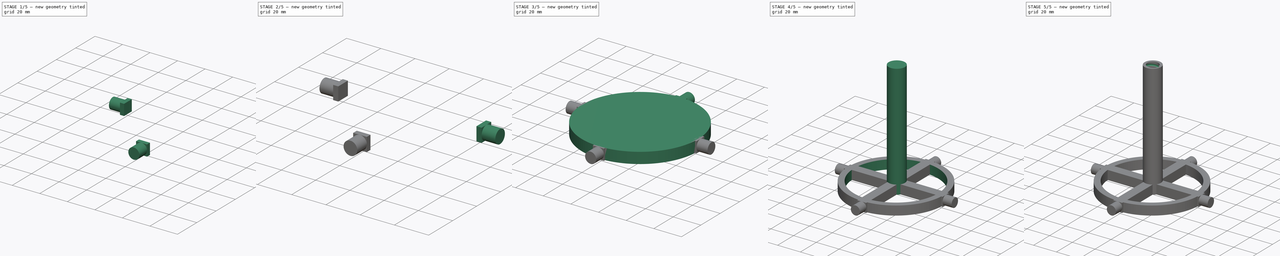
[diagram: build sequence overview — one tinted view per stage of 5, left to right]
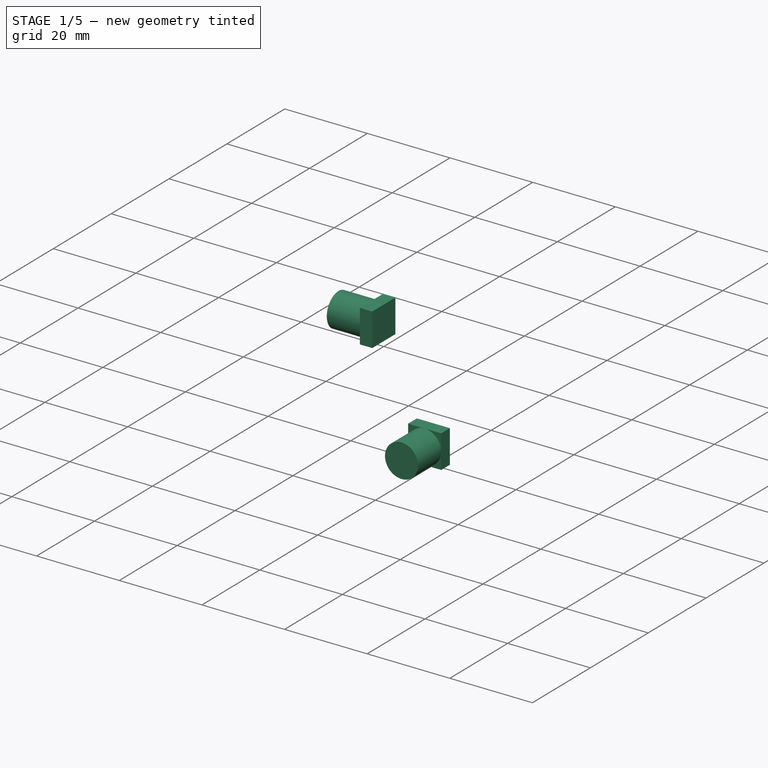
[diagram: stage 1 of 5 — iso view after this stage's code; geometry added in this stage tinted green]
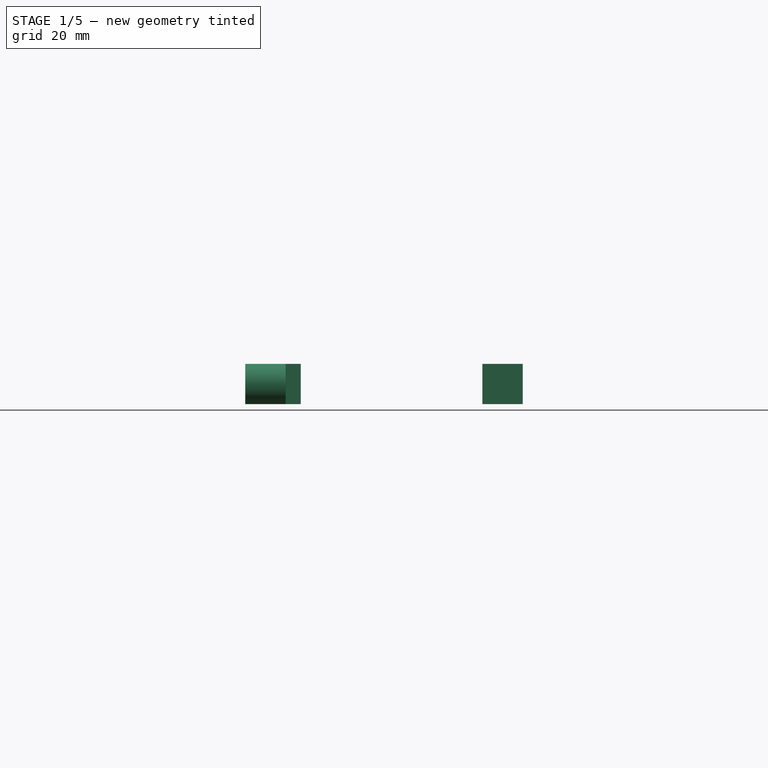
[diagram: stage 1 of 5 — front view after this stage's code; geometry added in this stage tinted green]
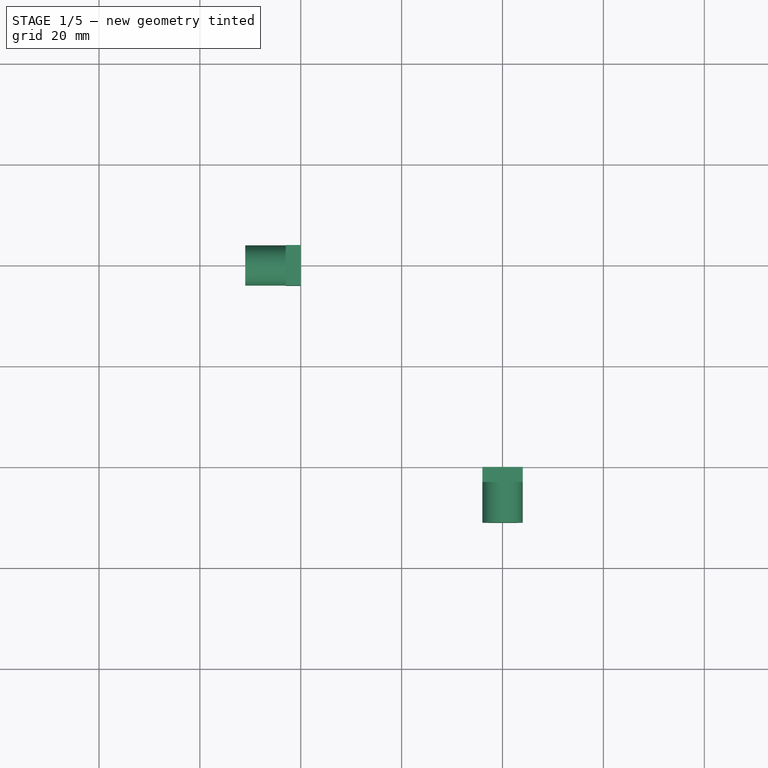
[diagram: stage 1 of 5 — top view after this stage's code; geometry added in this stage tinted green]
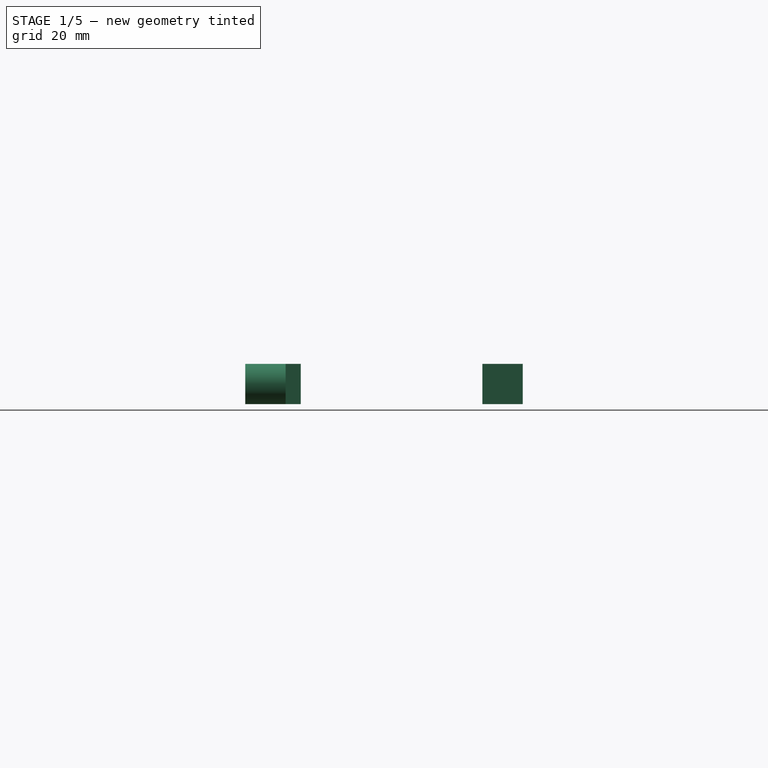
[diagram: stage 1 of 5 — right view after this stage's code; geometry added in this stage tinted green]
FCSTD DOCUMENT  (FreeCAD 0.16R6712 (Git))
Label: soporte 2
License: All rights reserved
LicenseURL: http://en.wikipedia.org/wiki/All_rights_reserved
objects: Part::Cylinder×7, Part::Box×7, Part::MultiFuse×6, Part::Cut×3, Part::Thickness×1, Part::Helix×1, Sketcher::SketchObject×1, Part::Sweep×1, App::DocumentObjectGroup×1
note: 27 computed .brp shape members not serialized (recipe doc carries the construction recipe); baked Part::Feature solids carry a one-line shape summary decoded from their .brp

FEATURE [Part::Cylinder] Cylinder005
  Angle = 360
  Height = 10
  Placement = pos=(0,-41,4) rot=(1,0,0;1.5708rad)
  Radius = 4
FEATURE [Part::Box] Box004  label="Cube004"
  Height = 8
  Length = 8
  Placement = pos=(-4,-43,0) rot=(0,0,1;0rad)
  Width = 3
FEATURE [Part::Cylinder] Cylinder006
  Angle = 360
  Height = 10
  Placement = pos=(0,-41,4) rot=(1,0,0;1.5708rad)
  Radius = 4
FEATURE [Part::Box] Box005  label="Cube005"
  Height = 8
  Length = 8
  Placement = pos=(-4,-43,0) rot=(0,0,1;0rad)
  Width = 3
FEATURE [Part::MultiFuse] Fusion005  label="sujetaBearing4"
  Placement = pos=(0,0,0) rot=(0,0,-1;1.5708rad)
  Shapes = -> [Box005,Cylinder006]
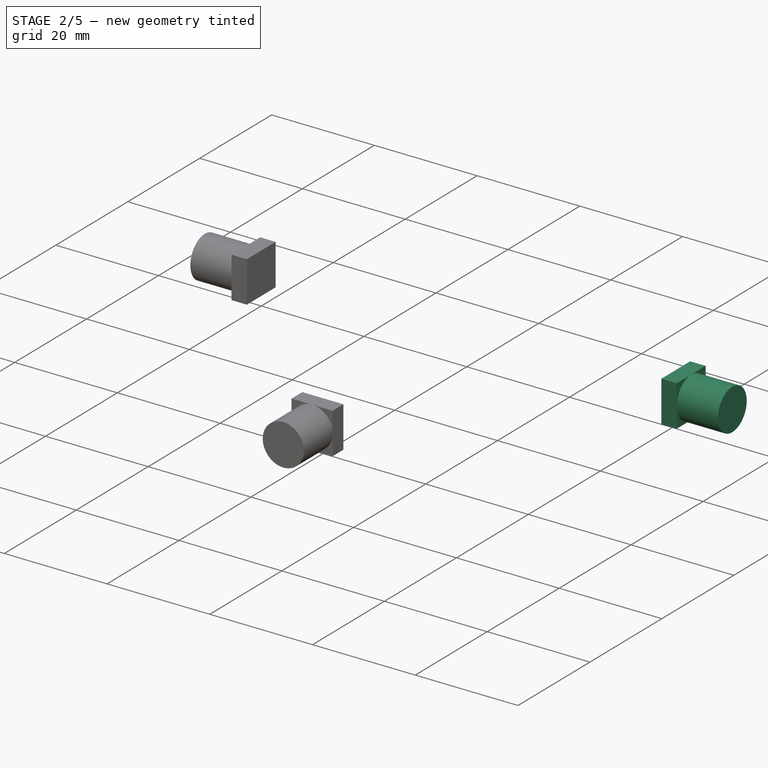
[diagram: stage 2 of 5 — iso view after this stage's code; geometry added in this stage tinted green]
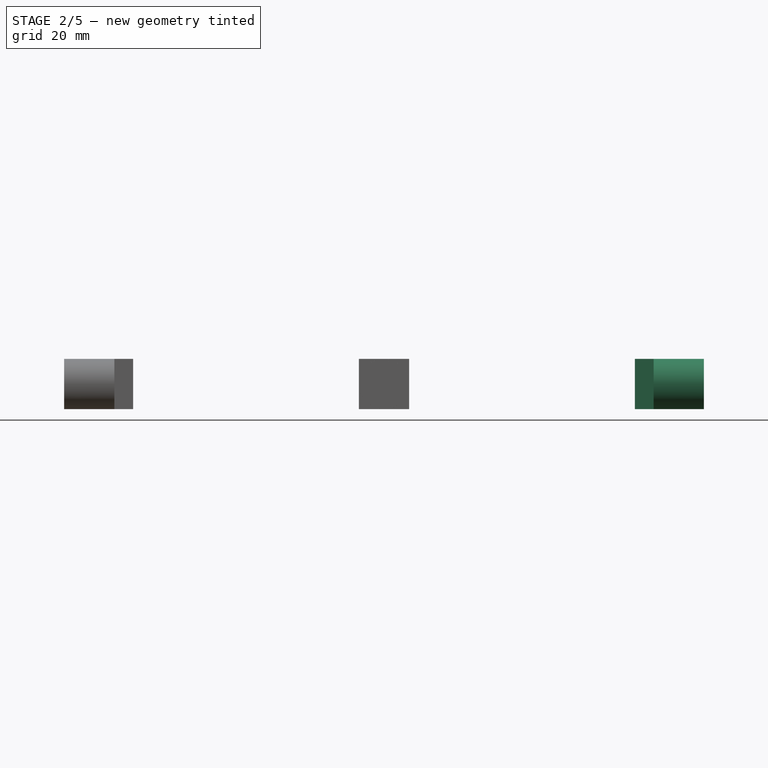
[diagram: stage 2 of 5 — front view after this stage's code; geometry added in this stage tinted green]
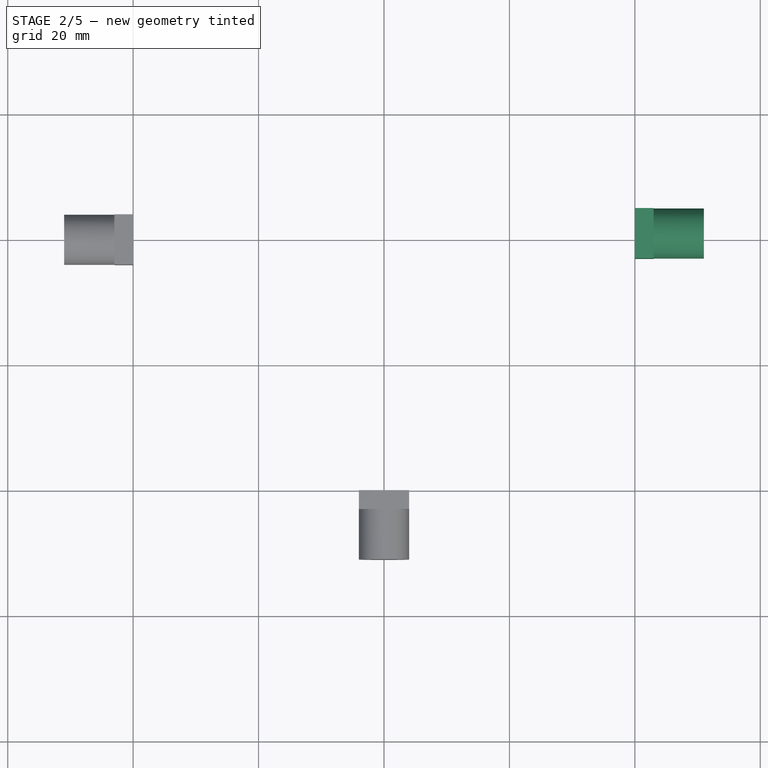
[diagram: stage 2 of 5 — top view after this stage's code; geometry added in this stage tinted green]
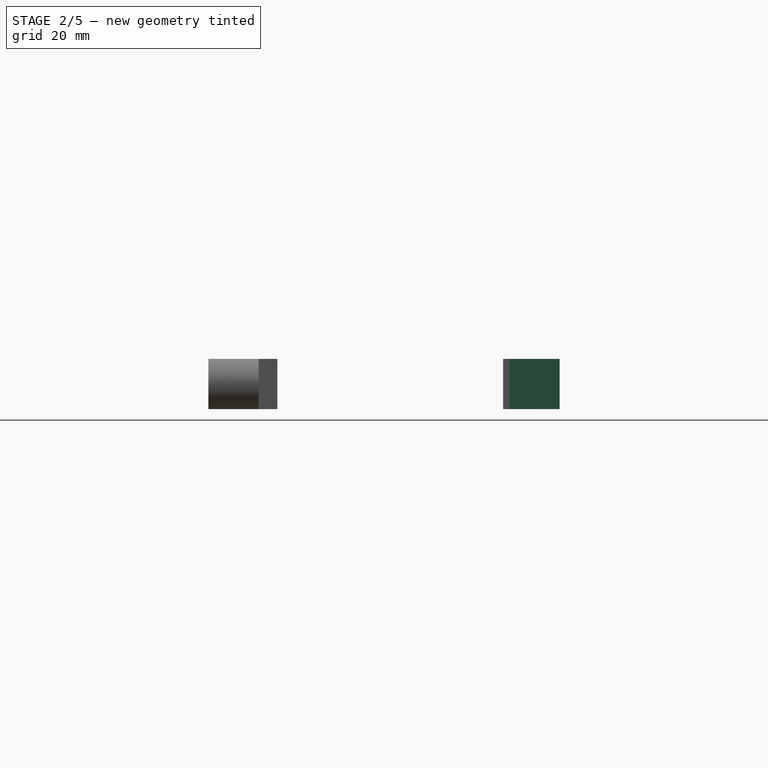
[diagram: stage 2 of 5 — right view after this stage's code; geometry added in this stage tinted green]
FEATURE [Part::Box] Box002  label="Cube002"
  Height = 8
  Length = 8
  Placement = pos=(-4,-43,0) rot=(0,0,1;0rad)
  Width = 3
FEATURE [Part::Cylinder] Cylinder004
  Angle = 360
  Height = 10
  Placement = pos=(0,-41,4) rot=(1,0,0;1.5708rad)
  Radius = 4
FEATURE [Part::Box] Box003  label="Cube003"
  Height = 8
  Length = 8
  Placement = pos=(-4,-43,0) rot=(0,0,1;0rad)
  Width = 3
FEATURE [Part::MultiFuse] Fusion003  label="sujetaBearing2"
  Placement = pos=(0,1,0) rot=(0,0,1;1.5708rad)
  Shapes = -> [Box003,Cylinder004]
FEATURE [Part::MultiFuse] Fusion004  label="sujetaBearing3"
  Shapes = -> [Box004,Cylinder005]
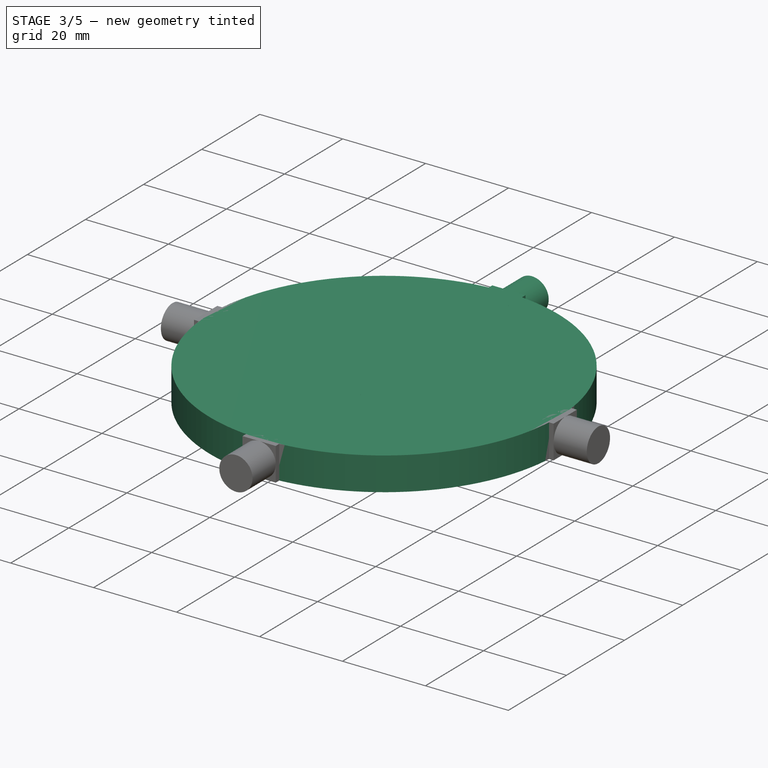
[diagram: stage 3 of 5 — iso view after this stage's code; geometry added in this stage tinted green]
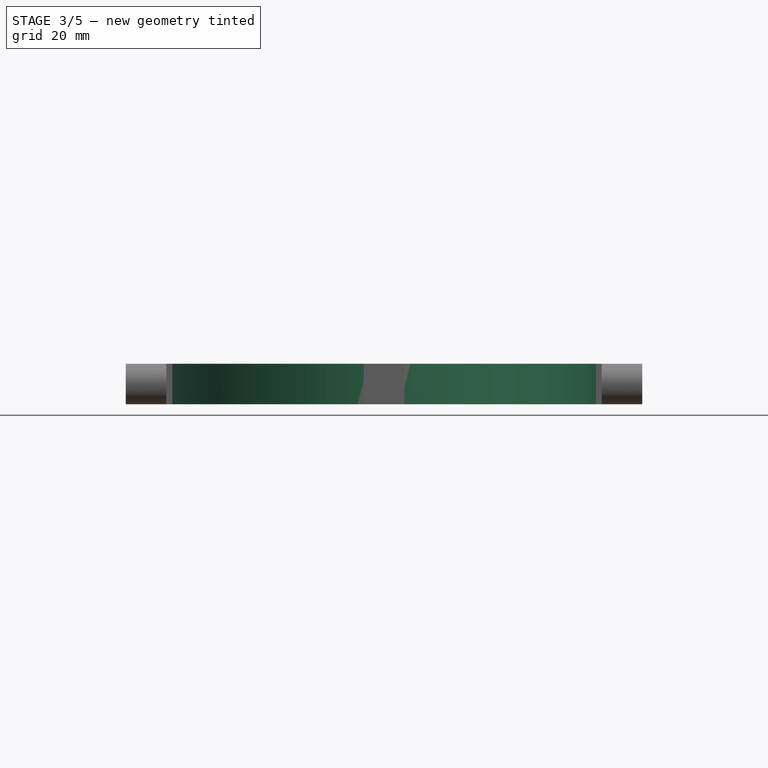
[diagram: stage 3 of 5 — front view after this stage's code; geometry added in this stage tinted green]
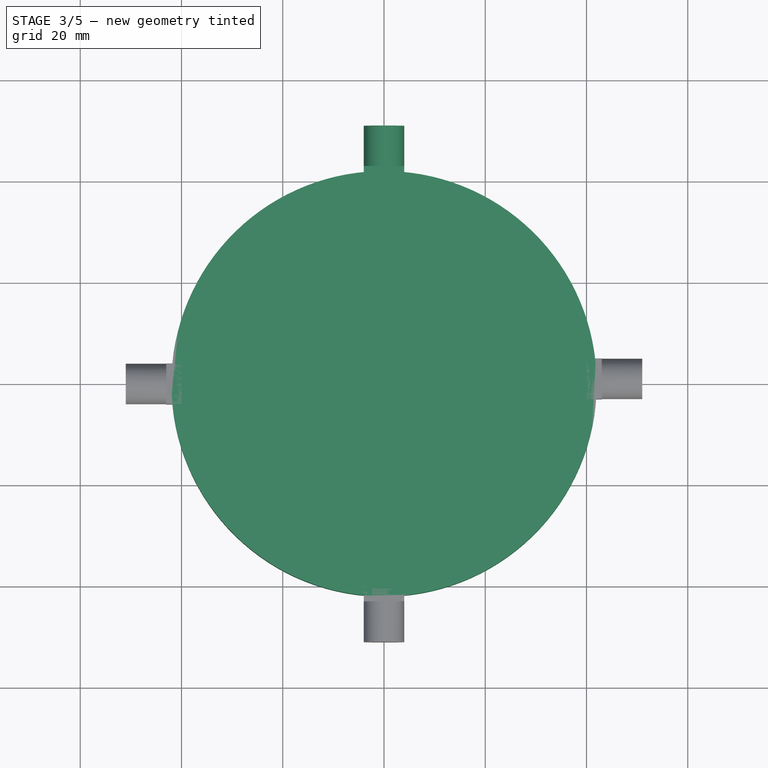
[diagram: stage 3 of 5 — top view after this stage's code; geometry added in this stage tinted green]
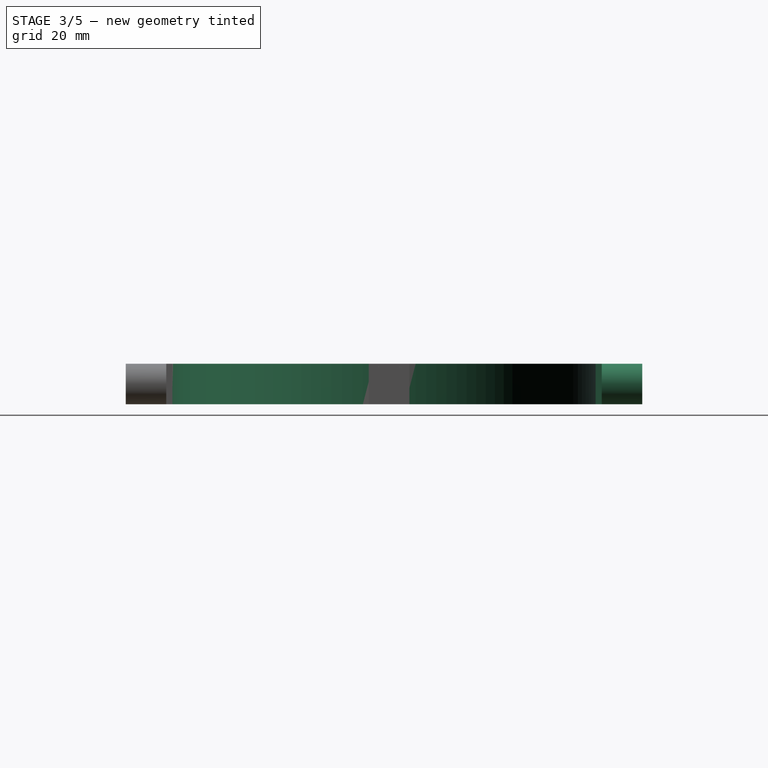
[diagram: stage 3 of 5 — right view after this stage's code; geometry added in this stage tinted green]
FEATURE [Part::Cylinder] Cylinder
  Angle = 360
  Height = 8
  Radius = 42
FEATURE [Part::Box] Box  label="Cube"
  Height = 8
  Length = 80
  Placement = pos=(4,-40,0) rot=(0,0,1;1.5708rad)
  Width = 8
FEATURE [Part::Box] Box001  label="Cube001"
  Height = 8
  Length = 80
  Placement = pos=(-40,-3,0) rot=(0,0,1;0rad)
  Width = 8
FEATURE [Part::Cylinder] Cylinder003
  Angle = 360
  Height = 10
  Placement = pos=(0,-41,4) rot=(1,0,0;1.5708rad)
  Radius = 4
FEATURE [Part::MultiFuse] Fusion002  label="sujetaBearing"
  Placement = pos=(0,0,0) rot=(0,0,1;3.14159rad)
  Shapes = -> [Box002,Cylinder003]
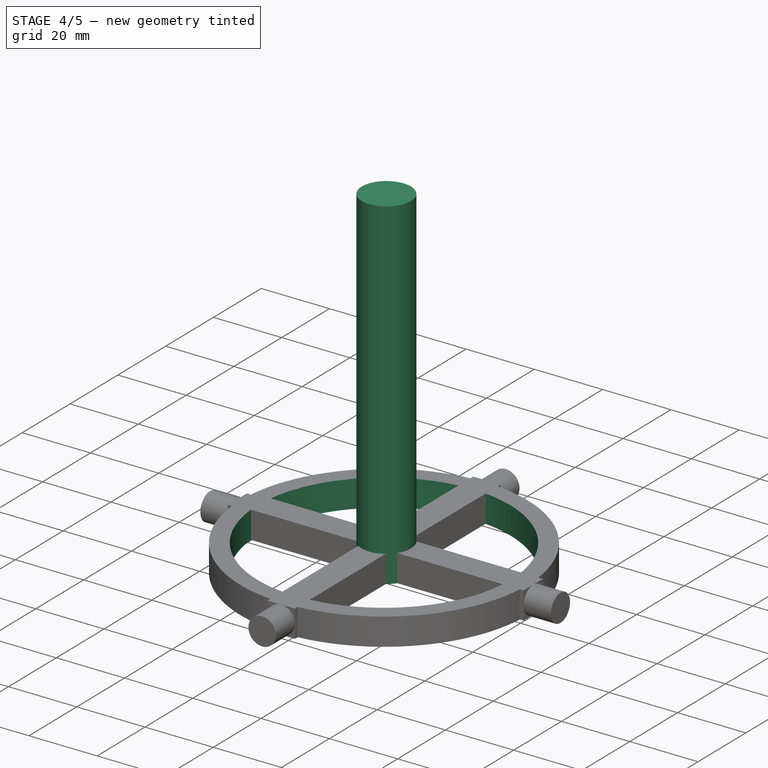
[diagram: stage 4 of 5 — iso view after this stage's code; geometry added in this stage tinted green]
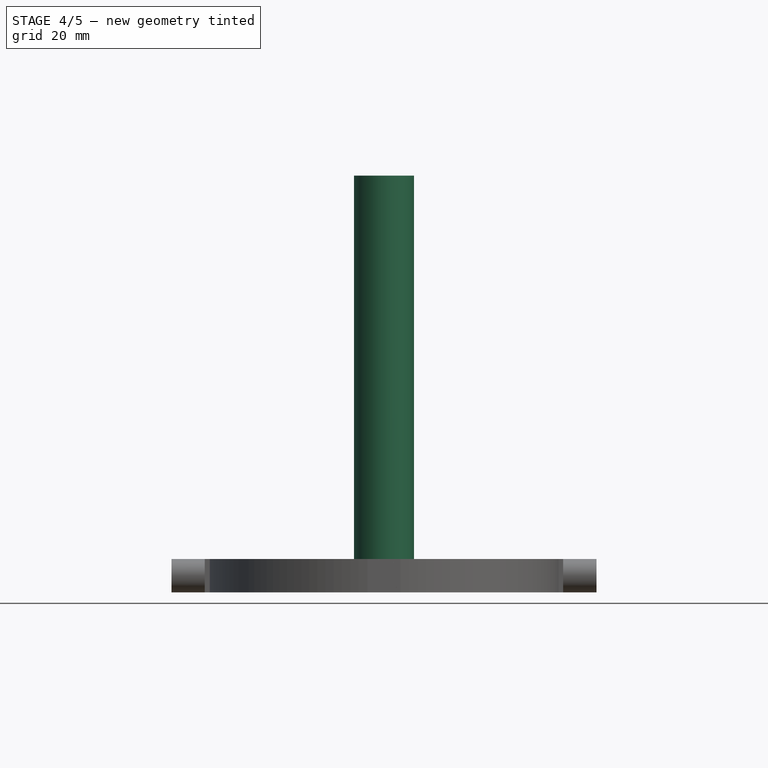
[diagram: stage 4 of 5 — front view after this stage's code; geometry added in this stage tinted green]
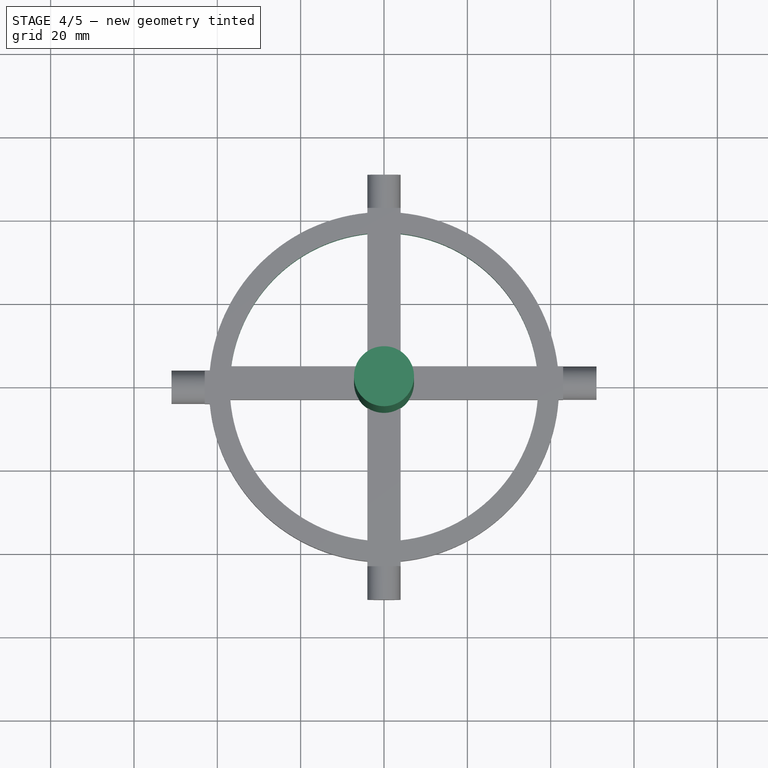
[diagram: stage 4 of 5 — top view after this stage's code; geometry added in this stage tinted green]
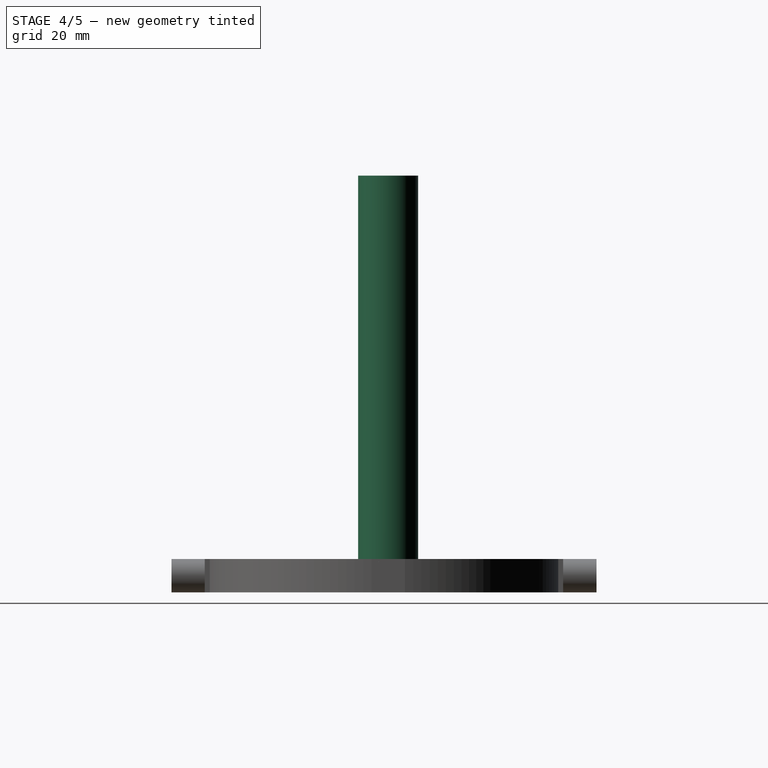
[diagram: stage 4 of 5 — right view after this stage's code; geometry added in this stage tinted green]
FEATURE [Part::Thickness] Thickness
  Faces = -> Cylinder [Face3,Face2]
  Intersection = false
  Join = 0
  Mode = 0
  SelfIntersection = false
  Value = -5
FEATURE [Part::MultiFuse] Fusion  label="circuloYcruz"
  Shapes = -> [Box001,Box,Thickness]
FEATURE [Part::Cylinder] Cylinder007  label="PaloCentral"
  Angle = 360
  Height = 100
  Placement = pos=(0,1,0) rot=(0,0,1;0rad)
  Radius = 7.2
FEATURE [Part::Helix] Helix
  Angle = 0
  Height = 20
  LocalCoord = 0
  Pitch = 4
  Radius = 5
  Style = 1
FEATURE [Part::Cylinder] Cylinder008  label="cilindrorosca"
  Angle = 360
  Height = 20
  Placement = pos=(0,1,80) rot=(0,0,1;0rad)
  Radius = 5
FEATURE [Part::MultiFuse] Fusion006
  Shapes = -> [Fusion002,Fusion003,Fusion004,Fusion005,Fusion]
FEATURE [App::DocumentObjectGroup] Group  label="SujetaRodamiento"
  Group = -> [Fusion006]
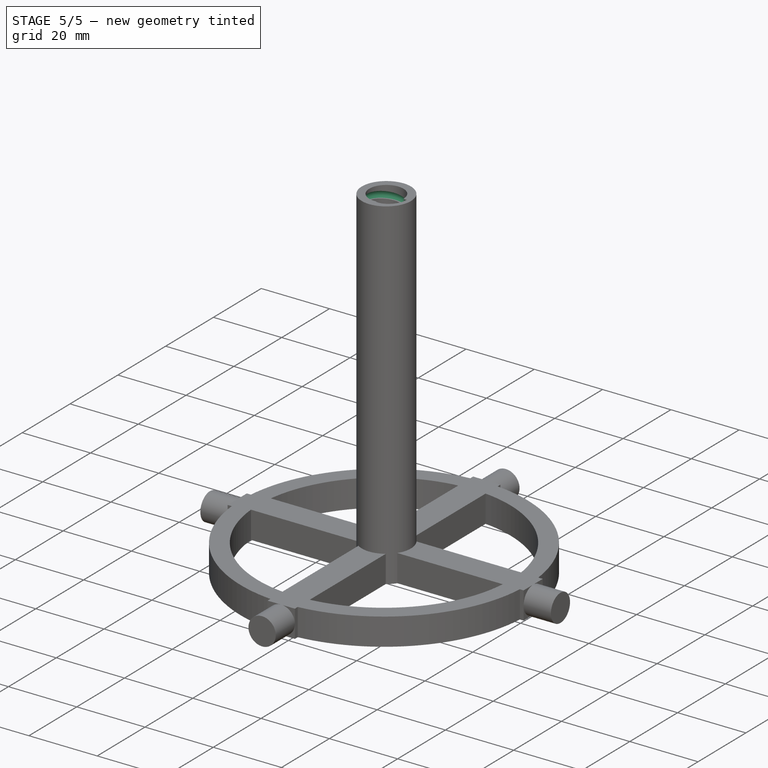
[diagram: stage 5 of 5 — iso view after this stage's code; geometry added in this stage tinted green]
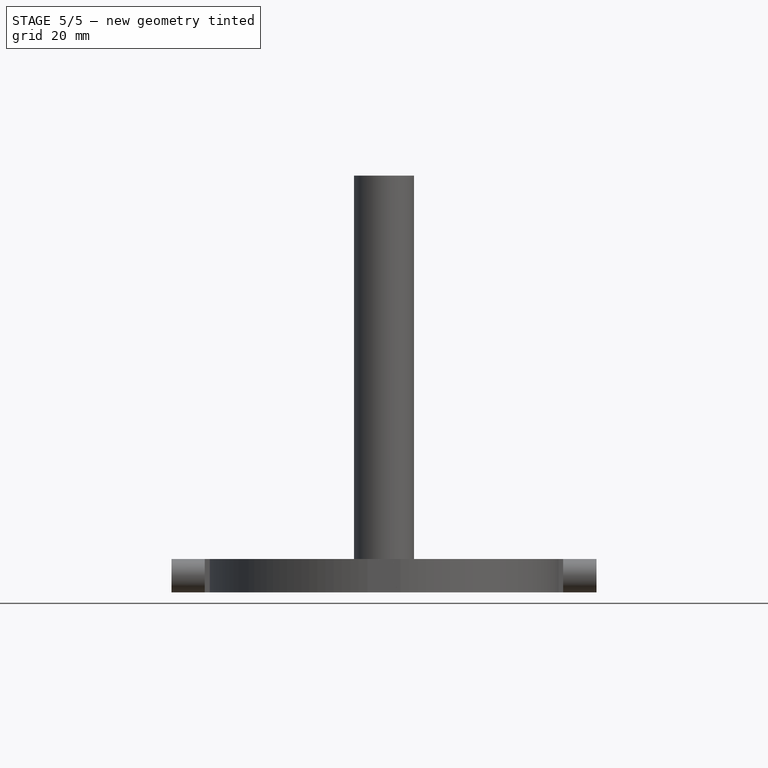
[diagram: stage 5 of 5 — front view after this stage's code; geometry added in this stage tinted green]
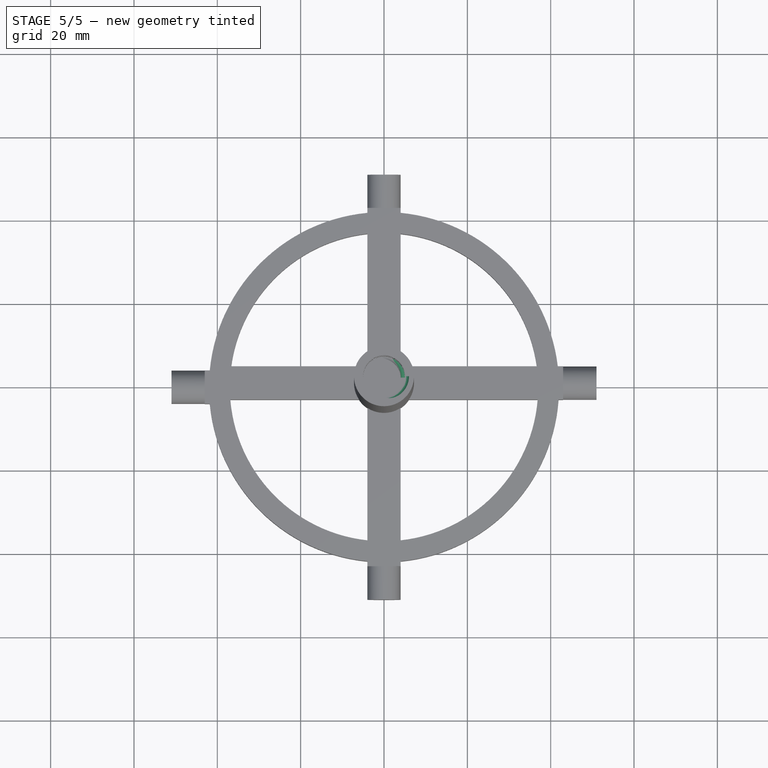
[diagram: stage 5 of 5 — top view after this stage's code; geometry added in this stage tinted green]
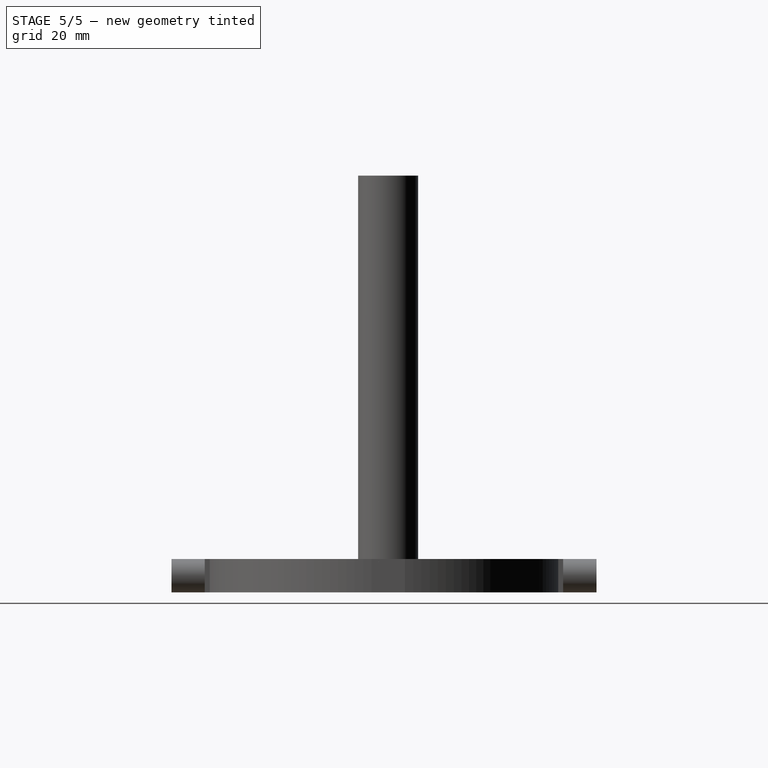
[diagram: stage 5 of 5 — right view after this stage's code; geometry added in this stage tinted green]
FEATURE [Sketcher::SketchObject] Sketch
  Placement = pos=(0,0,0) rot=(1,0,0;1.5708rad)
  sketch-geometry (1):
    g0: Circle CenterX=5 CenterY=-0.065053 CenterZ=0 NormalX=0 NormalY=0 NormalZ=1 Radius=1
  constraints (2):
    c: Radius(g0) = 1
    c: DistanceX(g-1,g0) = 5
FEATURE [Part::Sweep] Sweep
  Frenet = true
  Sections = -> [Sketch]
  Solid = true
  Spine = -> Helix
  Transition = 1
FEATURE [Part::Box] Box006  label="Cube006"
  Height = 20
  Length = 20
  Placement = pos=(-7,-8,20) rot=(0,0,1;0rad)
  Width = 20
FEATURE [Part::Cut] Cut  label="rosca"
  Base = -> Sweep
  Placement = pos=(0,1,80) rot=(0,0,1;0rad)
  Tool = -> Box006
FEATURE [Part::Cut] Cut001
  Base = -> Cylinder007
  Tool = -> Cylinder008
FEATURE [Part::Cut] Cut002  label="PaloConRosca"
  Base = -> Cut001
  Tool = -> Cut
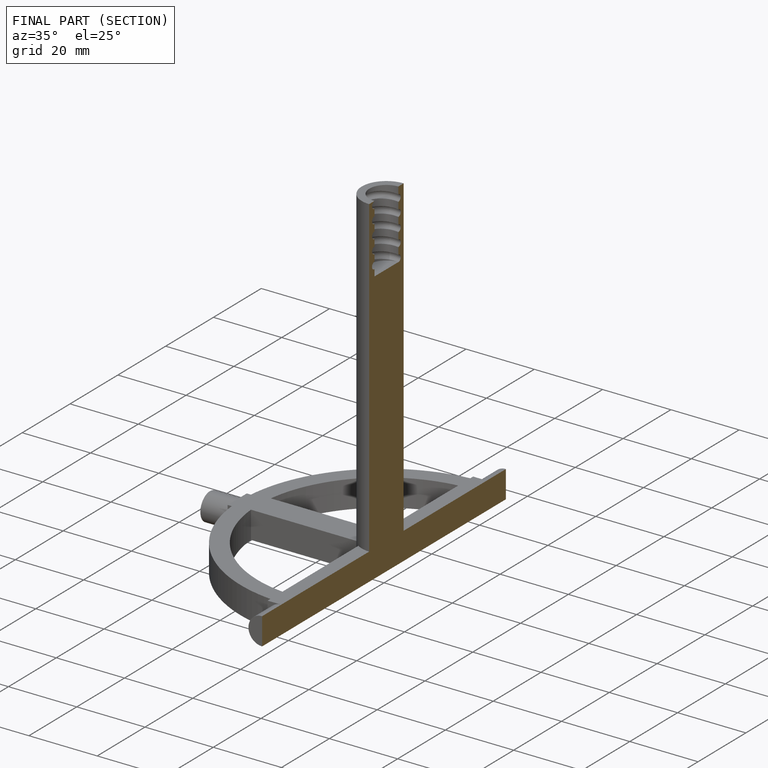
[diagram: finished part — half-section view (interior)]
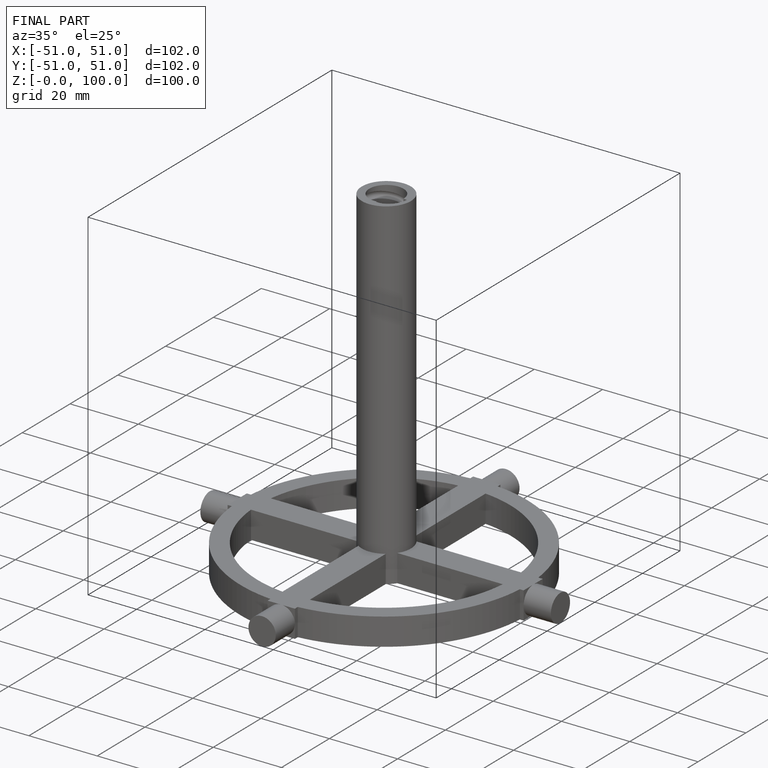
[diagram: finished part — iso view with bounding-box wireframe]
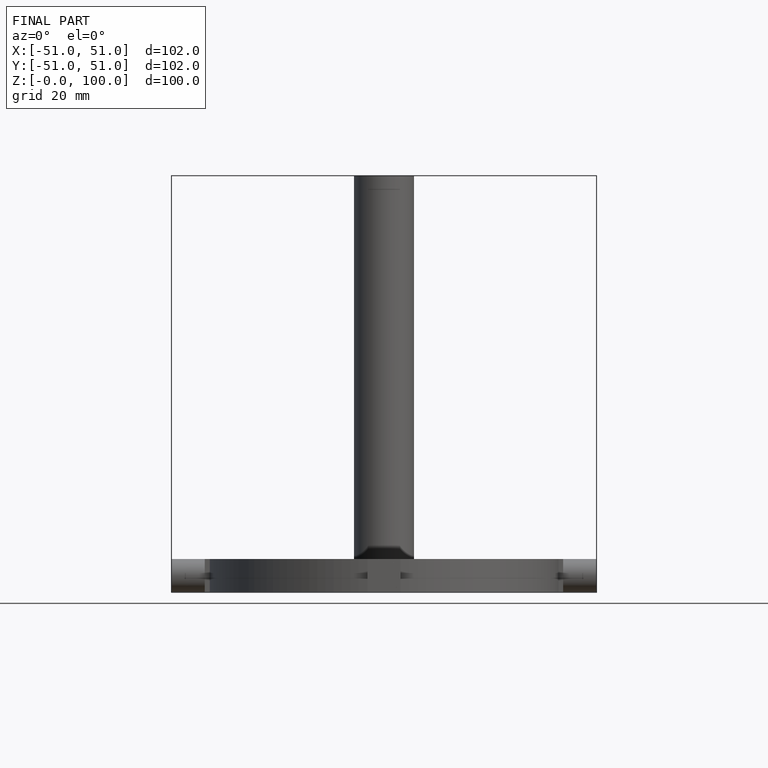
[diagram: finished part — front view with bounding-box wireframe]
